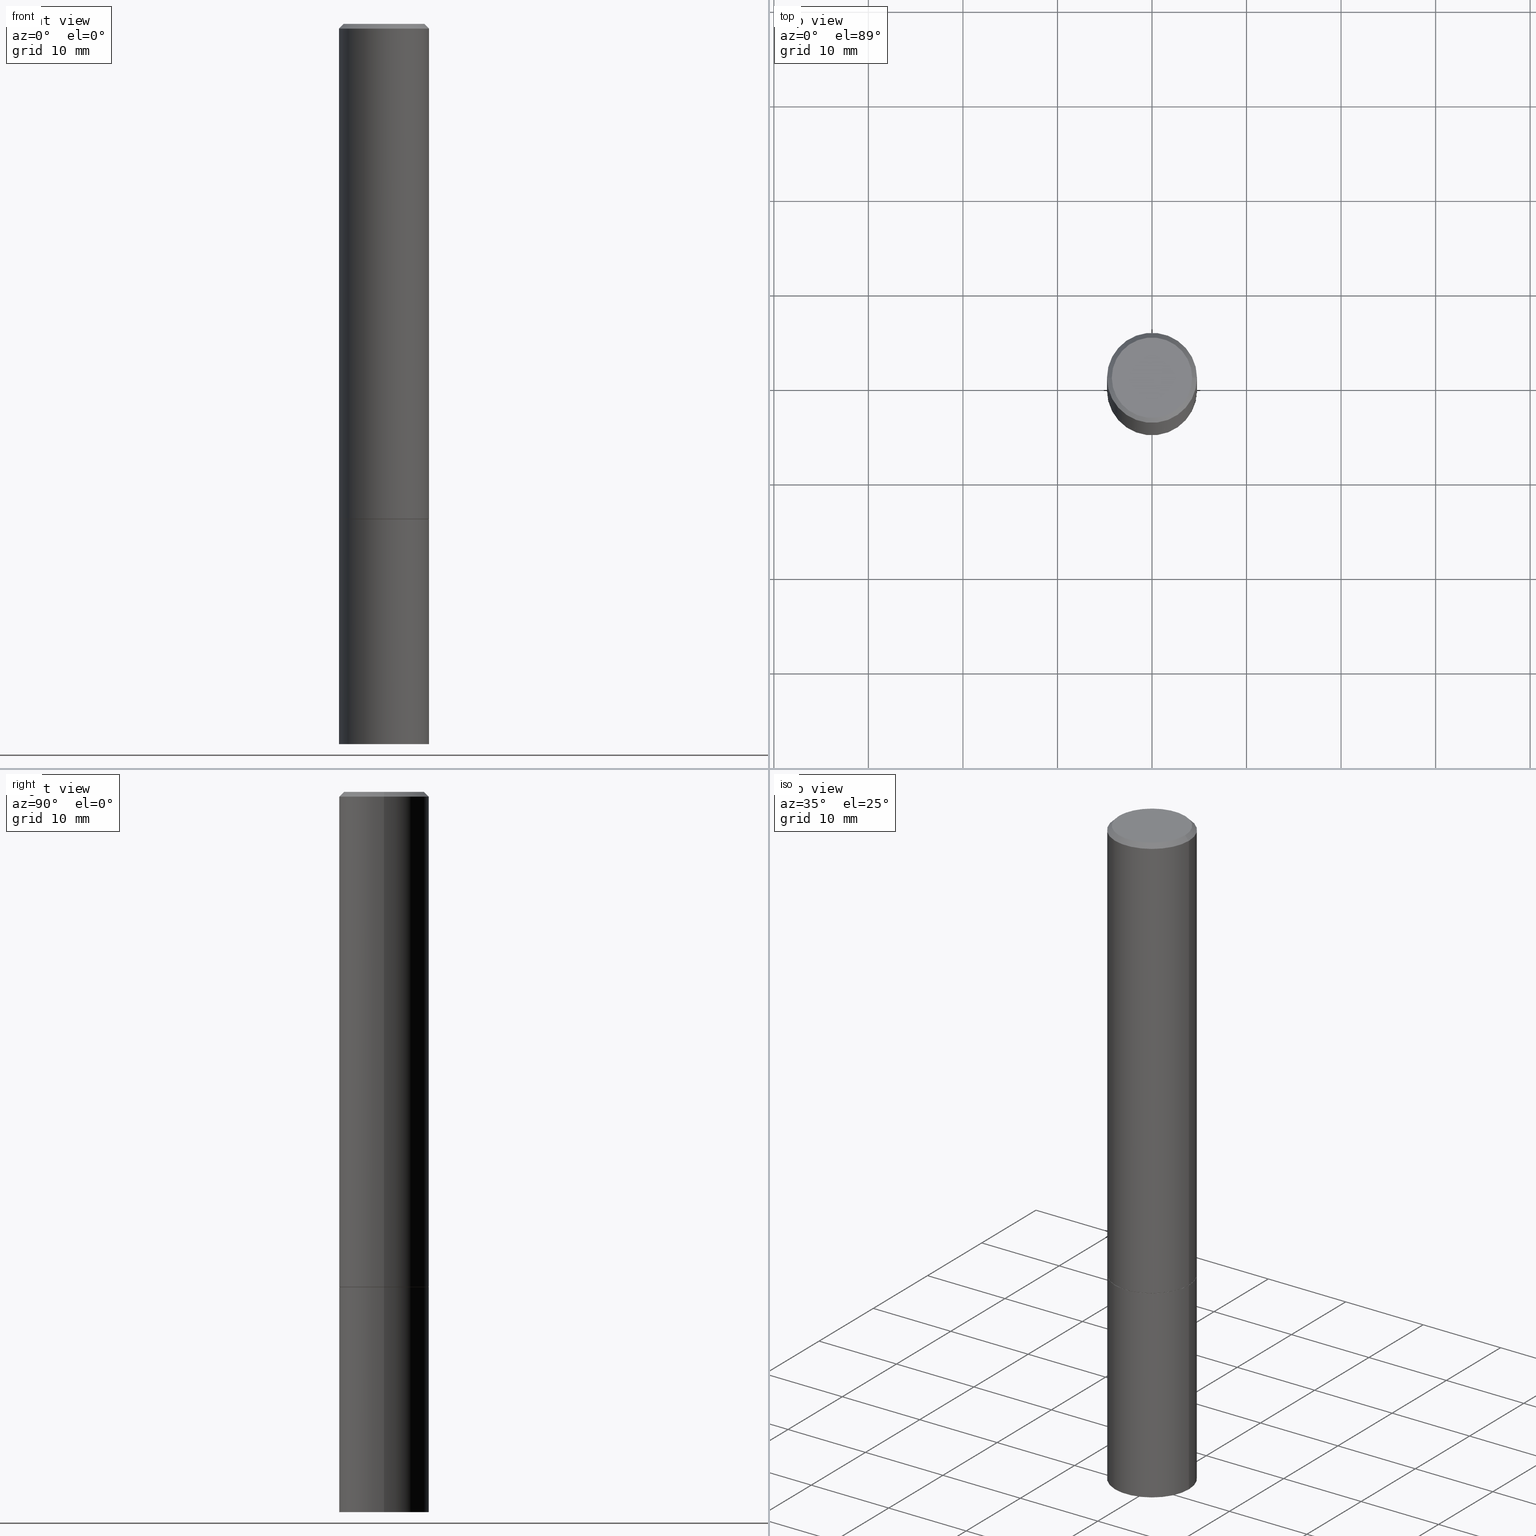
[diagram: canonical four-view strip — front | top / right | iso, engineering-drawing reading convention]
A machine part, canonical four-view strip (front | top / right | iso — engineering-drawing reading convention). The complete STEP part file that produces these views, byte-faithful:
ISO-10303-21;
HEADER;
FILE_DESCRIPTION (( 'STEP AP203' ),
    '1' );
FILE_NAME ('77136.STEP',
    '2024-02-29T14:40:52',
    ( '' ),
    ( '' ),
    'SwSTEP 2.0',
    'SolidWorks 2023',
    '' );
FILE_SCHEMA (( 'CONFIG_CONTROL_DESIGN' ));
ENDSEC;

DATA;
#1 = PERSON_AND_ORGANIZATION ( #186, #278 ) ;
#2 = VERTEX_POINT ( 'NONE', #108 ) ;
#3 =( NAMED_UNIT ( * ) PLANE_ANGLE_UNIT ( ) SI_UNIT ( $, .RADIAN. ) );
#4 = CC_DESIGN_PERSON_AND_ORGANIZATION_ASSIGNMENT ( #119, #183, ( #52 ) ) ;
#5 = DIRECTION ( 'NONE',  ( 1.000000000000000000, -6.982962677686266711E-15, 0.000000000000000000 ) ) ;
#6 = AXIS2_PLACEMENT_3D ( 'NONE', #210, #291, #343 ) ;
#7 = DIRECTION ( 'NONE',  ( -0.7071067811866199593, 7.493145998870616062E-15, 0.7071067811864750752 ) ) ;
#8 = DIRECTION ( 'NONE',  ( 1.000000000000000000, -6.982962677686265922E-15, 4.875936752492899929E-29 ) ) ;
#9 = DIRECTION ( 'NONE',  ( 1.000000000000000000, -6.982962677686266711E-15, 0.000000000000000000 ) ) ;
#10 = LINE ( 'NONE', #102, #165 ) ;
#11 = CARTESIAN_POINT ( 'NONE',  ( 0.1875000000000000278, -1.178374951859561136E-14, -3.000000000000000444 ) ) ;
#12 = EDGE_CURVE ( 'NONE', #362, #133, #230, .T. ) ;
#13 = LINE ( 'NONE', #272, #51 ) ;
#14 = AXIS2_PLACEMENT_3D ( 'NONE', #156, #321, #267 ) ;
#15 = APPROVAL_ROLE ( '' ) ;
#16 = CC_DESIGN_APPROVAL ( #337, ( #19 ) ) ;
#17 = DIRECTION ( 'NONE',  ( -0.7071067811865465735, 2.468850131082246805E-15, -0.7071067811865484609 ) ) ;
#18 = EDGE_CURVE ( 'NONE', #350, #319, #295, .T. ) ;
#19 = PRODUCT_DEFINITION ( 'UNKNOWN', '', #52, #87 ) ;
#20 = ORIENTED_EDGE ( 'NONE', *, *, #143, .F. ) ;
#21 = DIRECTION ( 'NONE',  ( 1.000000000000000000, -6.982962677686265922E-15, 4.876176775795935793E-29 ) ) ;
#22 = APPLICATION_PROTOCOL_DEFINITION ( 'international standard', 'config_control_design', 1994, #113 ) ;
#23 = EDGE_CURVE ( 'NONE', #266, #325, #199, .T. ) ;
#24 = CARTESIAN_POINT ( 'NONE',  ( 0.1874999999999997502, -1.356173001359023494E-15, -0.02000000000000004205 ) ) ;
#25 = EDGE_CURVE ( 'NONE', #350, #71, #188, .T. ) ;
#26 = DIRECTION ( 'NONE',  ( -2.445468806185136597E-29, 3.491481338843145583E-15, 1.000000000000000000 ) ) ;
#27 = UNCERTAINTY_MEASURE_WITH_UNIT (LENGTH_MEASURE( 1.000000000000000082E-05 ), #35, 'distance_accuracy_value', 'NONE');
#28 = ORIENTED_EDGE ( 'NONE', *, *, #257, .T. ) ;
#29 = AXIS2_PLACEMENT_3D ( 'NONE', #277, #327, #96 ) ;
#30 = EDGE_CURVE ( 'NONE', #266, #316, #346, .T. ) ;
#31 = APPROVAL_DATE_TIME ( #77, #213 ) ;
#32 = CIRCLE ( 'NONE', #231, 0.1874999999999997502 ) ;
#33 = DATE_AND_TIME ( #117, #122 ) ;
#34 = EDGE_LOOP ( 'NONE', ( #130, #341 ) ) ;
#35 =( CONVERSION_BASED_UNIT ( 'INCH', #150 ) LENGTH_UNIT ( ) NAMED_UNIT ( #311 ) );
#36 = FACE_OUTER_BOUND ( 'NONE', #276, .T. ) ;
#37 = DIRECTION ( 'NONE',  ( 0.000000000000000000, 0.000000000000000000, 1.000000000000000000 ) ) ;
#38 = FACE_OUTER_BOUND ( 'NONE', #34, .T. ) ;
#39 = AXIS2_PLACEMENT_3D ( 'NONE', #97, #268, #8 ) ;
#40 = AXIS2_PLACEMENT_3D ( 'NONE', #292, #37, #239 ) ;
#41 = COORDINATED_UNIVERSAL_TIME_OFFSET ( 5, 0, .BEHIND. ) ;
#42 = ORIENTED_EDGE ( 'NONE', *, *, #12, .F. ) ;
#43 = APPROVAL_PERSON_ORGANIZATION ( #246, #213, #134 ) ;
#44 = CARTESIAN_POINT ( 'NONE',  ( 5.043779412756843670E-29, -7.201180261363987000E-15, -2.062500000000000000 ) ) ;
#45 = CARTESIAN_POINT ( 'NONE',  ( 7.336406418555409790E-29, -1.047444401652943635E-14, -3.000000000000000444 ) ) ;
#46 = DIRECTION ( 'NONE',  ( -2.445468806185136597E-29, 3.491481338843145583E-15, 1.000000000000000000 ) ) ;
#47 = EDGE_CURVE ( 'NONE', #2, #316, #13, .T. ) ;
#48 = DIRECTION ( 'NONE',  ( -2.445468806185136597E-29, 3.491481338843145583E-15, 1.000000000000000000 ) ) ;
#49 = ORIENTED_EDGE ( 'NONE', *, *, #191, .F. ) ;
#50 = DIRECTION ( 'NONE',  ( -2.445468806185136877E-29, 3.491481338843145188E-15, 1.000000000000000000 ) ) ;
#51 = VECTOR ( 'NONE', #190, 39.37007874015748143 ) ;
#52 = PRODUCT_DEFINITION_FORMATION_WITH_SPECIFIED_SOURCE ( 'ANY', '', #168, .NOT_KNOWN. ) ;
#53 = ORIENTED_EDGE ( 'NONE', *, *, #143, .T. ) ;
#54 = DIRECTION ( 'NONE',  ( -2.445468806185136597E-29, 3.491481338843145583E-15, 1.000000000000000000 ) ) ;
#55 = AXIS2_PLACEMENT_3D ( 'NONE', #121, #68, #237 ) ;
#56 = CARTESIAN_POINT ( 'NONE',  ( 5.043779412756844791E-29, -7.201180261363988578E-15, -2.062500000000000000 ) ) ;
#57 = EDGE_LOOP ( 'NONE', ( #269, #232 ) ) ;
#58 = CIRCLE ( 'NONE', #138, 0.1875000000000000278 ) ;
#59 = ORIENTED_EDGE ( 'NONE', *, *, #30, .T. ) ;
#60 = CC_DESIGN_PERSON_AND_ORGANIZATION_ASSIGNMENT ( #147, #235, ( #72 ) ) ;
#61 = EDGE_LOOP ( 'NONE', ( #331, #251, #212, #284 ) ) ;
#62 = APPROVAL_STATUS ( 'not_yet_approved' ) ;
#63 = CARTESIAN_POINT ( 'NONE',  ( 0.1674999999999997602, -1.252653207992876711E-15, 4.268512490108880748E-18 ) ) ;
#64 = CARTESIAN_POINT ( 'NONE',  ( 0.1875000000000000278, -1.309305502066175008E-15, 9.142831454617381013E-30 ) ) ;
#65 = LINE ( 'NONE', #290, #160 ) ;
#66 = PLANE ( 'NONE',  #29 ) ;
#67 = CARTESIAN_POINT ( 'NONE',  ( -0.1875000000000000278, -7.505544509396524617E-15, -2.062500000000000000 ) ) ;
#68 = DIRECTION ( 'NONE',  ( -2.445468806185136597E-29, 3.491481338843145583E-15, 1.000000000000000000 ) ) ;
#69 = ADVANCED_FACE ( 'NONE', ( #128 ), #302, .T. ) ;
#70 = APPROVAL_DATE_TIME ( #273, #364 ) ;
#71 = VERTEX_POINT ( 'NONE', #126 ) ;
#72 = SECURITY_CLASSIFICATION ( '', '', #189 ) ;
#73 = DIRECTION ( 'NONE',  ( 1.000000000000000000, -6.982962677686265133E-15, 0.000000000000000000 ) ) ;
#74 = CARTESIAN_POINT ( 'NONE',  ( 7.336406418555409790E-29, -1.047444401652943635E-14, -3.000000000000000444 ) ) ;
#75 = DIRECTION ( 'NONE',  ( 1.000000000000000000, -6.982962677686266711E-15, 0.000000000000000000 ) ) ;
#76 = ORIENTED_EDGE ( 'NONE', *, *, #18, .T. ) ;
#77 = DATE_AND_TIME ( #332, #174 ) ;
#78 = DIRECTION ( 'NONE',  ( -2.445468806185136877E-29, 3.491481338843145188E-15, 1.000000000000000000 ) ) ;
#79 = CC_DESIGN_PERSON_AND_ORGANIZATION_ASSIGNMENT ( #252, #109, ( #19 ) ) ;
#80 = EDGE_LOOP ( 'NONE', ( #238, #81, #91, #354 ) ) ;
#81 = ORIENTED_EDGE ( 'NONE', *, *, #338, .T. ) ;
#82 = PERSON_AND_ORGANIZATION ( #186, #278 ) ;
#83 = DIRECTION ( 'NONE',  ( 1.000000000000000000, -6.982962677686265922E-15, 4.876176775795935793E-29 ) ) ;
#84 = LINE ( 'NONE', #359, #334 ) ;
#85 = AXIS2_PLACEMENT_3D ( 'NONE', #236, #347, #342 ) ;
#86 = ADVANCED_FACE ( 'NONE', ( #38 ), #66, .F. ) ;
#87 = DESIGN_CONTEXT ( 'detailed design', #113, 'design' ) ;
#88 = VERTEX_POINT ( 'NONE', #206 ) ;
#89 = VECTOR ( 'NONE', #17, 39.37007874015748143 ) ;
#90 = CONICAL_SURFACE ( 'NONE', #144, 0.1864999999999999991, 0.7853981633975507526 ) ;
#91 = ORIENTED_EDGE ( 'NONE', *, *, #348, .F. ) ;
#92 = EDGE_CURVE ( 'NONE', #2, #146, #356, .T. ) ;
#93 = ORIENTED_EDGE ( 'NONE', *, *, #348, .T. ) ;
#94 = DIRECTION ( 'NONE',  ( 1.000000000000000000, -6.982962677686268288E-15, 0.000000000000000000 ) ) ;
#95 = AXIS2_PLACEMENT_3D ( 'NONE', #218, #322, #240 ) ;
#96 = DIRECTION ( 'NONE',  ( -1.000000000000000000, 6.982962677686265922E-15, -4.876176775795935793E-29 ) ) ;
#97 = CARTESIAN_POINT ( 'NONE',  ( -1.043851414335219820E-46, 1.490343170380447200E-32, 4.268512490100411279E-18 ) ) ;
#98 = EDGE_CURVE ( 'NONE', #316, #88, #261, .T. ) ;
#99 = CYLINDRICAL_SURFACE ( 'NONE', #55, 0.1874999999999998890 ) ;
#100 = PERSON_AND_ORGANIZATION_ROLE ( 'design_supplier' ) ;
#101 = CARTESIAN_POINT ( 'NONE',  ( -0.1874999999999997502, 1.239475875289309935E-15, -0.02000000000000004205 ) ) ;
#102 = CARTESIAN_POINT ( 'NONE',  ( -0.1875000000000000278, 1.332267629550188046E-15, -9.223003294227947991E-30 ) ) ;
#103 = VECTOR ( 'NONE', #142, 39.37007874015748143 ) ;
#104 = CARTESIAN_POINT ( 'NONE',  ( 5.043779412756844791E-29, -7.201180261363988578E-15, -2.062500000000000000 ) ) ;
#105 = EDGE_LOOP ( 'NONE', ( #42, #248 ) ) ;
#106 = ADVANCED_FACE ( 'NONE', ( #184 ), #247, .F. ) ;
#107 = CARTESIAN_POINT ( 'NONE',  ( 0.1864999999999999991, -8.503502800752475994E-15, -2.062500000000000000 ) ) ;
#108 = CARTESIAN_POINT ( 'NONE',  ( -0.1875000000000000278, -2.301491573850814614E-15, -2.061500000000000110 ) ) ;
#109 = PERSON_AND_ORGANIZATION_ROLE ( 'creator' ) ;
#110 = CLOSED_SHELL ( 'NONE', ( #69, #360, #106, #225 ) ) ;
#111 = ORIENTED_EDGE ( 'NONE', *, *, #47, .T. ) ;
#112 = LOCAL_TIME ( 9, 40, 52.00000000000000000, #249 ) ;
#113 = APPLICATION_CONTEXT ( 'configuration controlled 3d designs of mechanical parts and assemblies' ) ;
#114 = ADVANCED_FACE ( 'NONE', ( #36 ), #315, .T. ) ;
#115 = CARTESIAN_POINT ( 'NONE',  ( 4.890937612370283668E-31, -6.982962677686305168E-17, -0.02000000000000004205 ) ) ;
#116 = AXIS2_PLACEMENT_3D ( 'NONE', #118, #243, #317 ) ;
#117 = CALENDAR_DATE ( 2024, 29, 2 ) ;
#118 = CARTESIAN_POINT ( 'NONE',  ( 1.309305502066248372E-15, 0.1874999999999895361, -3.000000000000000888 ) ) ;
#119 = PERSON_AND_ORGANIZATION ( #186, #278 ) ;
#120 = AXIS2_PLACEMENT_3D ( 'NONE', #258, #306, #83 ) ;
#121 = CARTESIAN_POINT ( 'NONE',  ( 0.000000000000000000, 0.000000000000000000, 0.000000000000000000 ) ) ;
#122 = LOCAL_TIME ( 9, 40, 52.00000000000000000, #203 ) ;
#123 = CALENDAR_DATE ( 2024, 29, 2 ) ;
#124 = ORIENTED_EDGE ( 'NONE', *, *, #145, .T. ) ;
#125 = ADVANCED_FACE ( 'NONE', ( #293 ), #99, .T. ) ;
#126 = CARTESIAN_POINT ( 'NONE',  ( 0.1875000000000000278, -8.510485763430163586E-15, -2.062500000000000000 ) ) ;
#127 = PLANE ( 'NONE',  #116 ) ;
#128 = FACE_OUTER_BOUND ( 'NONE', #161, .T. ) ;
#129 = DIRECTION ( 'NONE',  ( 1.000000000000000000, -6.982962677686261189E-15, 0.000000000000000000 ) ) ;
#130 = ORIENTED_EDGE ( 'NONE', *, *, #23, .T. ) ;
#131 = DATE_TIME_ROLE ( 'creation_date' ) ;
#132 = DIRECTION ( 'NONE',  ( -2.445468806185136597E-29, 3.491481338843145583E-15, 1.000000000000000000 ) ) ;
#133 = VERTEX_POINT ( 'NONE', #242 ) ;
#134 = APPROVAL_ROLE ( '' ) ;
#135 = EDGE_LOOP ( 'NONE', ( #93, #111, #365, #201 ) ) ;
#136 = CALENDAR_DATE ( 2024, 29, 2 ) ;
#137 = FACE_OUTER_BOUND ( 'NONE', #294, .T. ) ;
#138 = AXIS2_PLACEMENT_3D ( 'NONE', #329, #46, #9 ) ;
#139 = PERSON_AND_ORGANIZATION ( #186, #278 ) ;
#140 = CC_DESIGN_SECURITY_CLASSIFICATION ( #72, ( #52 ) ) ;
#141 = EDGE_CURVE ( 'NONE', #325, #266, #215, .T. ) ;
#142 = DIRECTION ( 'NONE',  ( 0.7071067811865465735, -7.319954787623252890E-15, -0.7071067811865484609 ) ) ;
#143 = EDGE_CURVE ( 'NONE', #319, #339, #10, .T. ) ;
#144 = AXIS2_PLACEMENT_3D ( 'NONE', #221, #26, #307 ) ;
#145 = EDGE_CURVE ( 'NONE', #319, #350, #197, .T. ) ;
#146 = VERTEX_POINT ( 'NONE', #353 ) ;
#147 = PERSON_AND_ORGANIZATION ( #186, #278 ) ;
#148 = CARTESIAN_POINT ( 'NONE',  ( 4.890937612370283668E-31, -6.982962677686305168E-17, -0.02000000000000004205 ) ) ;
#149 = ORIENTED_EDGE ( 'NONE', *, *, #288, .T. ) ;
#150 = LENGTH_MEASURE_WITH_UNIT ( LENGTH_MEASURE( 0.02539999999999999897 ), #214 );
#151 = CLOSED_SHELL ( 'NONE', ( #169, #281, #308, #114, #125, #264, #205, #86 ) ) ;
#152 = AXIS2_PLACEMENT_3D ( 'NONE', #148, #157, #155 ) ;
#153 = ORIENTED_EDGE ( 'NONE', *, *, #18, .F. ) ;
#154 = DIRECTION ( 'NONE',  ( 1.000000000000000000, -6.982962677686268288E-15, 0.000000000000000000 ) ) ;
#155 = DIRECTION ( 'NONE',  ( -1.000000000000000000, 6.982962677686265133E-15, 0.000000000000000000 ) ) ;
#156 = CARTESIAN_POINT ( 'NONE',  ( 4.890937612370283668E-31, -6.982962677686305168E-17, -0.02000000000000004205 ) ) ;
#157 = DIRECTION ( 'NONE',  ( 2.445468806185136597E-29, -3.491481338843145583E-15, -1.000000000000000000 ) ) ;
#158 = APPROVAL_STATUS ( 'not_yet_approved' ) ;
#159 = CARTESIAN_POINT ( 'NONE',  ( -0.1874999999999997502, 1.239475875289309935E-15, -0.02000000000000004205 ) ) ;
#160 = VECTOR ( 'NONE', #7, 39.37007874015748143 ) ;
#161 = EDGE_LOOP ( 'NONE', ( #76, #53, #49, #328 ) ) ;
#162 = DIRECTION ( 'NONE',  ( 1.000000000000000000, -6.982962677686268288E-15, 0.000000000000000000 ) ) ;
#163 = EDGE_CURVE ( 'NONE', #339, #71, #200, .T. ) ;
#164 = CC_DESIGN_DATE_AND_TIME_ASSIGNMENT ( #309, #131, ( #19 ) ) ;
#165 = VECTOR ( 'NONE', #216, 39.37007874015748143 ) ;
#166 = DIRECTION ( 'NONE',  ( 1.000000000000000000, -6.982962677686266711E-15, 0.000000000000000000 ) ) ;
#167 = LINE ( 'NONE', #107, #340 ) ;
#168 = PRODUCT ( '77136', '77136', '', ( #296 ) ) ;
#169 = ADVANCED_FACE ( 'NONE', ( #192 ), #90, .T. ) ;
#170 = MANIFOLD_SOLID_BREP ( 'Body-Move/Copy2[2]', #151 ) ;
#171 = EDGE_CURVE ( 'NONE', #146, #88, #84, .T. ) ;
#172 = ORIENTED_EDGE ( 'NONE', *, *, #175, .T. ) ;
#173 = AXIS2_PLACEMENT_3D ( 'NONE', #349, #132, #5 ) ;
#174 = LOCAL_TIME ( 9, 40, 52.00000000000000000, #358 ) ;
#175 = EDGE_CURVE ( 'NONE', #362, #146, #167, .T. ) ;
#176 = EDGE_LOOP ( 'NONE', ( #193, #208, #28, #262 ) ) ;
#177 =( NAMED_UNIT ( * ) SI_UNIT ( $, .STERADIAN. ) SOLID_ANGLE_UNIT ( ) );
#178 = CONICAL_SURFACE ( 'NONE', #14, 0.1874999999999997502, 0.7853981633974469467 ) ;
#179 = SHAPE_DEFINITION_REPRESENTATION ( #181, #260 ) ;
#180 = FACE_OUTER_BOUND ( 'NONE', #176, .T. ) ;
#181 = PRODUCT_DEFINITION_SHAPE ( 'NONE', 'NONE',  #19 ) ;
#182 = DIRECTION ( 'NONE',  ( -2.445468806185136597E-29, 3.491481338843145583E-15, 1.000000000000000000 ) ) ;
#183 = PERSON_AND_ORGANIZATION_ROLE ( 'creator' ) ;
#184 = FACE_OUTER_BOUND ( 'NONE', #57, .T. ) ;
#185 = FACE_OUTER_BOUND ( 'NONE', #312, .T. ) ;
#186 = PERSON ( 'UNSPECIFIED', 'UNSPECIFIED', 'UNSPECIFIED', ('UNSPECIFIED'), ('UNSPECIFIED'), ('UNSPECIFIED') ) ;
#187 = CIRCLE ( 'NONE', #297, 0.1875000000000000278 ) ;
#188 = LINE ( 'NONE', #64, #253 ) ;
#189 = SECURITY_CLASSIFICATION_LEVEL ( 'unclassified' ) ;
#190 = DIRECTION ( 'NONE',  ( -2.445468806185136877E-29, 3.491481338843145188E-15, 1.000000000000000000 ) ) ;
#191 = EDGE_CURVE ( 'NONE', #71, #339, #187, .T. ) ;
#192 = FACE_OUTER_BOUND ( 'NONE', #80, .T. ) ;
#193 = ORIENTED_EDGE ( 'NONE', *, *, #141, .F. ) ;
#194 = PLANE ( 'NONE',  #351 ) ;
#195 = ORIENTED_EDGE ( 'NONE', *, *, #338, .F. ) ;
#196 = DIRECTION ( 'NONE',  ( -2.438088387897960049E-29, 3.491481338843145188E-15, 1.000000000000000000 ) ) ;
#197 = CIRCLE ( 'NONE', #255, 0.1875000000000000278 ) ;
#198 = LOCAL_TIME ( 9, 40, 52.00000000000000000, #223 ) ;
#199 = CIRCLE ( 'NONE', #39, 0.1674999999999997602 ) ;
#200 = CIRCLE ( 'NONE', #361, 0.1875000000000000278 ) ;
#201 = ORIENTED_EDGE ( 'NONE', *, *, #171, .F. ) ;
#202 = DIRECTION ( 'NONE',  ( -2.445468806185136597E-29, 3.491481338843145583E-15, 1.000000000000000000 ) ) ;
#203 = COORDINATED_UNIVERSAL_TIME_OFFSET ( 5, 0, .BEHIND. ) ;
#204 = CYLINDRICAL_SURFACE ( 'NONE', #85, 0.1874999999999998890 ) ;
#205 = ADVANCED_FACE ( 'NONE', ( #224 ), #194, .F. ) ;
#206 = CARTESIAN_POINT ( 'NONE',  ( 0.1874999999999997502, -1.356173001359023494E-15, -0.02000000000000004205 ) ) ;
#207 = DIRECTION ( 'NONE',  ( -2.445468806185136597E-29, 3.491481338843145583E-15, 1.000000000000000000 ) ) ;
#208 = ORIENTED_EDGE ( 'NONE', *, *, #233, .T. ) ;
#209 = FACE_OUTER_BOUND ( 'NONE', #135, .T. ) ;
#210 = CARTESIAN_POINT ( 'NONE',  ( 1.309305502066225495E-15, 0.1874999999999928113, -2.062500000000000888 ) ) ;
#211 = APPROVAL_ROLE ( '' ) ;
#212 = ORIENTED_EDGE ( 'NONE', *, *, #171, .T. ) ;
#213 = APPROVAL ( #256, 'UNSPECIFIED' ) ;
#214 =( LENGTH_UNIT ( ) NAMED_UNIT ( * ) SI_UNIT ( $, .METRE. ) );
#215 = CIRCLE ( 'NONE', #303, 0.1674999999999997602 ) ;
#216 = DIRECTION ( 'NONE',  ( -2.445468806185136877E-29, 3.491481338843145188E-15, 1.000000000000000000 ) ) ;
#217 = ORIENTED_EDGE ( 'NONE', *, *, #145, .F. ) ;
#218 = CARTESIAN_POINT ( 'NONE',  ( 4.890937612370283668E-31, -6.982962677686305168E-17, -0.02000000000000004205 ) ) ;
#219 = PERSON_AND_ORGANIZATION_ROLE ( 'design_owner' ) ;
#220 = CARTESIAN_POINT ( 'NONE',  ( 5.043779412756843670E-29, -7.201180261363987000E-15, -2.062500000000000000 ) ) ;
#221 = CARTESIAN_POINT ( 'NONE',  ( 5.043779412756843670E-29, -7.201180261363987000E-15, -2.062500000000000000 ) ) ;
#222 = AXIS2_PLACEMENT_3D ( 'NONE', #323, #202, #94 ) ;
#223 = COORDINATED_UNIVERSAL_TIME_OFFSET ( 5, 0, .BEHIND. ) ;
#224 = FACE_OUTER_BOUND ( 'NONE', #105, .T. ) ;
#225 = ADVANCED_FACE ( 'NONE', ( #137 ), #336, .T. ) ;
#226 = CC_DESIGN_PERSON_AND_ORGANIZATION_ASSIGNMENT ( #139, #219, ( #168 ) ) ;
#227 = DIRECTION ( 'NONE',  ( 0.7071067811866199593, -2.468850131083015945E-15, 0.7071067811864750752 ) ) ;
#228 = LOCAL_TIME ( 9, 40, 52.00000000000000000, #41 ) ;
#229 = ORIENTED_EDGE ( 'NONE', *, *, #92, .F. ) ;
#230 = CIRCLE ( 'NONE', #314, 0.1864999999999999991 ) ;
#231 = AXIS2_PLACEMENT_3D ( 'NONE', #115, #299, #73 ) ;
#232 = ORIENTED_EDGE ( 'NONE', *, *, #163, .T. ) ;
#233 = EDGE_CURVE ( 'NONE', #325, #88, #310, .T. ) ;
#234 = FACE_OUTER_BOUND ( 'NONE', #289, .T. ) ;
#235 = PERSON_AND_ORGANIZATION_ROLE ( 'classification_officer' ) ;
#236 = CARTESIAN_POINT ( 'NONE',  ( 0.000000000000000000, 0.000000000000000000, 0.000000000000000000 ) ) ;
#237 = DIRECTION ( 'NONE',  ( 1.000000000000000000, -6.982962677686265922E-15, 4.876176775795935793E-29 ) ) ;
#238 = ORIENTED_EDGE ( 'NONE', *, *, #12, .T. ) ;
#239 = DIRECTION ( 'NONE',  ( 1.000000000000000000, 0.000000000000000000, 0.000000000000000000 ) ) ;
#240 = DIRECTION ( 'NONE',  ( 1.000000000000000000, -6.982962677686265133E-15, 0.000000000000000000 ) ) ;
#241 = PERSON_AND_ORGANIZATION ( #186, #278 ) ;
#242 = CARTESIAN_POINT ( 'NONE',  ( -0.1864999999999999991, -5.870719604823178546E-15, -2.062500000000000000 ) ) ;
#243 = DIRECTION ( 'NONE',  ( 2.438088387897960049E-29, -3.491481338843145188E-15, -1.000000000000000000 ) ) ;
#244 = CONICAL_SURFACE ( 'NONE', #222, 0.1864999999999999991, 0.7853981633975507526 ) ;
#245 = DIRECTION ( 'NONE',  ( 1.000000000000000000, -6.982962677686261189E-15, 0.000000000000000000 ) ) ;
#246 = PERSON_AND_ORGANIZATION ( #186, #278 ) ;
#247 = PLANE ( 'NONE',  #6 ) ;
#248 = ORIENTED_EDGE ( 'NONE', *, *, #288, .F. ) ;
#249 = COORDINATED_UNIVERSAL_TIME_OFFSET ( 5, 0, .BEHIND. ) ;
#250 = CC_DESIGN_DATE_AND_TIME_ASSIGNMENT ( #33, #366, ( #72 ) ) ;
#251 = ORIENTED_EDGE ( 'NONE', *, *, #92, .T. ) ;
#252 = PERSON_AND_ORGANIZATION ( #186, #278 ) ;
#253 = VECTOR ( 'NONE', #50, 39.37007874015748143 ) ;
#254 = DIRECTION ( 'NONE',  ( -2.445468806185136597E-29, 3.491481338843145583E-15, 1.000000000000000000 ) ) ;
#255 = AXIS2_PLACEMENT_3D ( 'NONE', #74, #48, #245 ) ;
#256 = APPROVAL_STATUS ( 'not_yet_approved' ) ;
#257 = EDGE_CURVE ( 'NONE', #88, #316, #32, .T. ) ;
#258 = CARTESIAN_POINT ( 'NONE',  ( 0.000000000000000000, 0.000000000000000000, 0.000000000000000000 ) ) ;
#259 = APPROVAL_DATE_TIME ( #304, #337 ) ;
#260 = ADVANCED_BREP_SHAPE_REPRESENTATION ( '77136', ( #300, #170, #40 ), #287 ) ;
#261 = CIRCLE ( 'NONE', #95, 0.1874999999999997502 ) ;
#262 = ORIENTED_EDGE ( 'NONE', *, *, #30, .F. ) ;
#263 = ORIENTED_EDGE ( 'NONE', *, *, #98, .T. ) ;
#264 = ADVANCED_FACE ( 'NONE', ( #234 ), #244, .T. ) ;
#265 = CARTESIAN_POINT ( 'NONE',  ( -0.1674999999999997602, 1.204561061900878878E-15, 4.268512490092109750E-18 ) ) ;
#266 = VERTEX_POINT ( 'NONE', #265 ) ;
#267 = DIRECTION ( 'NONE',  ( -1.000000000000000000, 6.982962677686265133E-15, 0.000000000000000000 ) ) ;
#268 = DIRECTION ( 'NONE',  ( -2.445468806185136597E-29, 3.491481338843145583E-15, 1.000000000000000000 ) ) ;
#269 = ORIENTED_EDGE ( 'NONE', *, *, #191, .T. ) ;
#270 = CARTESIAN_POINT ( 'NONE',  ( 0.1864999999999999991, -8.503502800752475994E-15, -2.062500000000000000 ) ) ;
#271 = APPROVAL_PERSON_ORGANIZATION ( #82, #337, #15 ) ;
#272 = CARTESIAN_POINT ( 'NONE',  ( -0.1874999999999998890, 1.332267629550187060E-15, -9.223003294227942385E-30 ) ) ;
#273 = DATE_AND_TIME ( #123, #228 ) ;
#274 = CARTESIAN_POINT ( 'NONE',  ( -0.1875000000000000278, -7.505544509396524617E-15, -3.000000000000000444 ) ) ;
#275 = DIRECTION ( 'NONE',  ( 1.000000000000000000, -6.982962677686265922E-15, 4.875936752492899929E-29 ) ) ;
#276 = EDGE_LOOP ( 'NONE', ( #305, #335, #59, #263 ) ) ;
#277 = CARTESIAN_POINT ( 'NONE',  ( 1.169646248512447820E-15, 0.1674999999999997602, -5.826888680111757675E-16 ) ) ;
#278 = ORGANIZATION ( 'UNSPECIFIED', 'UNSPECIFIED', '' ) ;
#279 = CC_DESIGN_APPROVAL ( #213, ( #52 ) ) ;
#280 = CARTESIAN_POINT ( 'NONE',  ( 0.000000000000000000, 0.000000000000000000, 0.000000000000000000 ) ) ;
#281 = ADVANCED_FACE ( 'NONE', ( #209 ), #204, .T. ) ;
#282 = ORIENTED_EDGE ( 'NONE', *, *, #25, .T. ) ;
#283 = CALENDAR_DATE ( 2024, 29, 2 ) ;
#284 = ORIENTED_EDGE ( 'NONE', *, *, #98, .F. ) ;
#285 = AXIS2_PLACEMENT_3D ( 'NONE', #44, #326, #154 ) ;
#286 = CC_DESIGN_APPROVAL ( #364, ( #72 ) ) ;
#287 =( GEOMETRIC_REPRESENTATION_CONTEXT ( 3 ) GLOBAL_UNCERTAINTY_ASSIGNED_CONTEXT ( ( #27 ) ) GLOBAL_UNIT_ASSIGNED_CONTEXT ( ( #35, #3, #177 ) ) REPRESENTATION_CONTEXT ( 'NONE', 'WORKASPACE' ) );
#288 = EDGE_CURVE ( 'NONE', #133, #362, #318, .T. ) ;
#289 = EDGE_LOOP ( 'NONE', ( #195, #149, #172, #229 ) ) ;
#290 = CARTESIAN_POINT ( 'NONE',  ( -0.1864999999999999991, -5.876018059171400948E-15, -2.062500000000000000 ) ) ;
#291 = DIRECTION ( 'NONE',  ( 2.438088387897960049E-29, -3.491481338843145188E-15, -1.000000000000000000 ) ) ;
#292 = CARTESIAN_POINT ( 'NONE',  ( 0.000000000000000000, 0.000000000000000000, 0.000000000000000000 ) ) ;
#293 = FACE_OUTER_BOUND ( 'NONE', #61, .T. ) ;
#294 = EDGE_LOOP ( 'NONE', ( #20, #124, #282, #344 ) ) ;
#295 = CIRCLE ( 'NONE', #355, 0.1875000000000000278 ) ;
#296 = MECHANICAL_CONTEXT ( 'NONE', #363, 'mechanical' ) ;
#297 = AXIS2_PLACEMENT_3D ( 'NONE', #56, #254, #166 ) ;
#298 = DIRECTION ( 'NONE',  ( -2.445468806185136597E-29, 3.491481338843145583E-15, 1.000000000000000000 ) ) ;
#299 = DIRECTION ( 'NONE',  ( -2.445468806185136597E-29, 3.491481338843145583E-15, 1.000000000000000000 ) ) ;
#300 = MANIFOLD_SOLID_BREP ( 'Body-Move/Copy2[1]', #110 ) ;
#301 = CARTESIAN_POINT ( 'NONE',  ( -1.043851414335219820E-46, 1.490343170380447200E-32, 4.268512490100411279E-18 ) ) ;
#302 = CYLINDRICAL_SURFACE ( 'NONE', #352, 0.1875000000000000278 ) ;
#303 = AXIS2_PLACEMENT_3D ( 'NONE', #301, #298, #275 ) ;
#304 = DATE_AND_TIME ( #136, #112 ) ;
#305 = ORIENTED_EDGE ( 'NONE', *, *, #233, .F. ) ;
#306 = DIRECTION ( 'NONE',  ( -2.445468806185136597E-29, 3.491481338843145583E-15, 1.000000000000000000 ) ) ;
#307 = DIRECTION ( 'NONE',  ( 1.000000000000000000, -6.982962677686268288E-15, 0.000000000000000000 ) ) ;
#308 = ADVANCED_FACE ( 'NONE', ( #180 ), #178, .T. ) ;
#309 = DATE_AND_TIME ( #283, #198 ) ;
#310 = LINE ( 'NONE', #24, #103 ) ;
#311 = DIMENSIONAL_EXPONENTS ( 1.000000000000000000, 0.000000000000000000, 0.000000000000000000, 0.000000000000000000, 0.000000000000000000, 0.000000000000000000, 0.000000000000000000 ) ;
#312 = EDGE_LOOP ( 'NONE', ( #153, #217 ) ) ;
#313 = CC_DESIGN_PERSON_AND_ORGANIZATION_ASSIGNMENT ( #241, #100, ( #52 ) ) ;
#314 = AXIS2_PLACEMENT_3D ( 'NONE', #220, #54, #162 ) ;
#315 = CONICAL_SURFACE ( 'NONE', #152, 0.1874999999999997502, 0.7853981633974469467 ) ;
#316 = VERTEX_POINT ( 'NONE', #101 ) ;
#317 = DIRECTION ( 'NONE',  ( -1.000000000000000000, 6.982962677686265922E-15, -4.876176775795935793E-29 ) ) ;
#318 = CIRCLE ( 'NONE', #285, 0.1864999999999999991 ) ;
#319 = VERTEX_POINT ( 'NONE', #274 ) ;
#320 = APPROVAL_PERSON_ORGANIZATION ( #1, #364, #211 ) ;
#321 = DIRECTION ( 'NONE',  ( 2.445468806185136597E-29, -3.491481338843145583E-15, -1.000000000000000000 ) ) ;
#322 = DIRECTION ( 'NONE',  ( -2.445468806185136597E-29, 3.491481338843145583E-15, 1.000000000000000000 ) ) ;
#323 = CARTESIAN_POINT ( 'NONE',  ( 5.043779412756843670E-29, -7.201180261363987000E-15, -2.062500000000000000 ) ) ;
#324 = DIRECTION ( 'NONE',  ( 1.000000000000000000, -6.982962677686265922E-15, 4.876176775795935793E-29 ) ) ;
#325 = VERTEX_POINT ( 'NONE', #63 ) ;
#326 = DIRECTION ( 'NONE',  ( -2.445468806185136597E-29, 3.491481338843145583E-15, 1.000000000000000000 ) ) ;
#327 = DIRECTION ( 'NONE',  ( 2.438088387897960049E-29, -3.491481338843145188E-15, -1.000000000000000000 ) ) ;
#328 = ORIENTED_EDGE ( 'NONE', *, *, #25, .F. ) ;
#329 = CARTESIAN_POINT ( 'NONE',  ( 5.041333943950659188E-29, -7.197688780025145571E-15, -2.061500000000000110 ) ) ;
#330 = DIRECTION ( 'NONE',  ( -2.445468806185136597E-29, 3.491481338843145583E-15, 1.000000000000000000 ) ) ;
#331 = ORIENTED_EDGE ( 'NONE', *, *, #47, .F. ) ;
#332 = CALENDAR_DATE ( 2024, 29, 2 ) ;
#333 = CARTESIAN_POINT ( 'NONE',  ( 5.043779412756844791E-29, -7.201180261363988578E-15, -2.062500000000000000 ) ) ;
#334 = VECTOR ( 'NONE', #78, 39.37007874015748143 ) ;
#335 = ORIENTED_EDGE ( 'NONE', *, *, #23, .F. ) ;
#336 = CYLINDRICAL_SURFACE ( 'NONE', #120, 0.1875000000000000278 ) ;
#337 = APPROVAL ( #158, 'UNSPECIFIED' ) ;
#338 = EDGE_CURVE ( 'NONE', #133, #2, #65, .T. ) ;
#339 = VERTEX_POINT ( 'NONE', #67 ) ;
#340 = VECTOR ( 'NONE', #227, 39.37007874015748143 ) ;
#341 = ORIENTED_EDGE ( 'NONE', *, *, #141, .T. ) ;
#342 = DIRECTION ( 'NONE',  ( 1.000000000000000000, -6.982962677686265922E-15, 4.876176775795935793E-29 ) ) ;
#343 = DIRECTION ( 'NONE',  ( -1.000000000000000000, 6.982962677686265922E-15, -4.876176775795935793E-29 ) ) ;
#344 = ORIENTED_EDGE ( 'NONE', *, *, #163, .F. ) ;
#345 = APPLICATION_PROTOCOL_DEFINITION ( 'international standard', 'config_control_design', 1994, #363 ) ;
#346 = LINE ( 'NONE', #159, #89 ) ;
#347 = DIRECTION ( 'NONE',  ( -2.445468806185136597E-29, 3.491481338843145583E-15, 1.000000000000000000 ) ) ;
#348 = EDGE_CURVE ( 'NONE', #146, #2, #58, .T. ) ;
#349 = CARTESIAN_POINT ( 'NONE',  ( 5.041333943950659188E-29, -7.197688780025145571E-15, -2.061500000000000110 ) ) ;
#350 = VERTEX_POINT ( 'NONE', #11 ) ;
#351 = AXIS2_PLACEMENT_3D ( 'NONE', #333, #196, #21 ) ;
#352 = AXIS2_PLACEMENT_3D ( 'NONE', #280, #207, #324 ) ;
#353 = CARTESIAN_POINT ( 'NONE',  ( 0.1875000000000000278, -8.506994282091320579E-15, -2.061500000000000110 ) ) ;
#354 = ORIENTED_EDGE ( 'NONE', *, *, #175, .F. ) ;
#355 = AXIS2_PLACEMENT_3D ( 'NONE', #45, #182, #129 ) ;
#356 = CIRCLE ( 'NONE', #173, 0.1875000000000000278 ) ;
#357 = PRODUCT_RELATED_PRODUCT_CATEGORY ( 'detail', '', ( #168 ) ) ;
#358 = COORDINATED_UNIVERSAL_TIME_OFFSET ( 5, 0, .BEHIND. ) ;
#359 = CARTESIAN_POINT ( 'NONE',  ( 0.1874999999999998890, -1.309305502066174022E-15, 9.142831454617374006E-30 ) ) ;
#360 = ADVANCED_FACE ( 'NONE', ( #185 ), #127, .T. ) ;
#361 = AXIS2_PLACEMENT_3D ( 'NONE', #104, #330, #75 ) ;
#362 = VERTEX_POINT ( 'NONE', #270 ) ;
#363 = APPLICATION_CONTEXT ( 'configuration controlled 3d designs of mechanical parts and assemblies' ) ;
#364 = APPROVAL ( #62, 'UNSPECIFIED' ) ;
#365 = ORIENTED_EDGE ( 'NONE', *, *, #257, .F. ) ;
#366 = DATE_TIME_ROLE ( 'classification_date' ) ;
ENDSEC;
END-ISO-10303-21;
